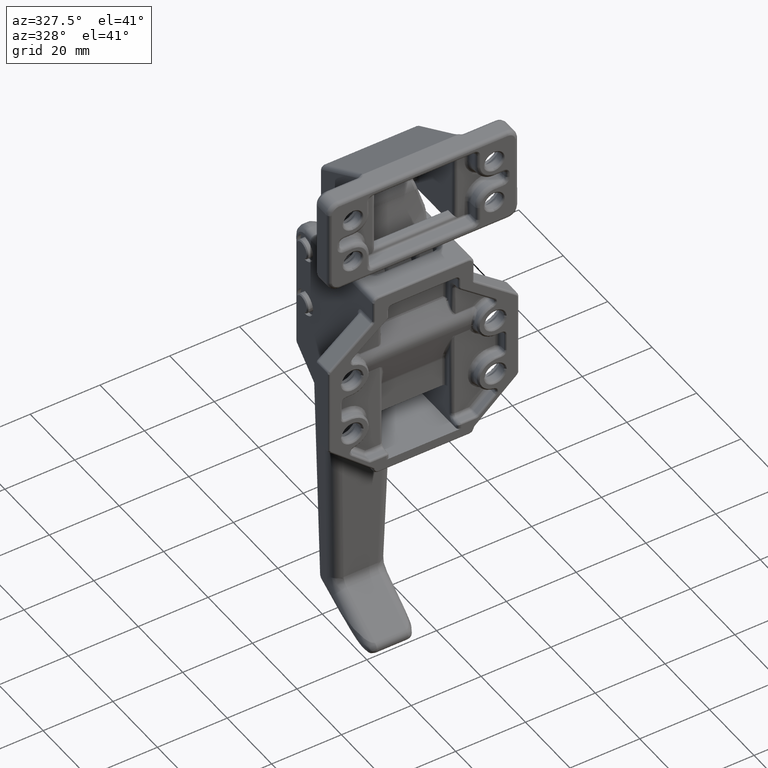
[diagram: clean part render]
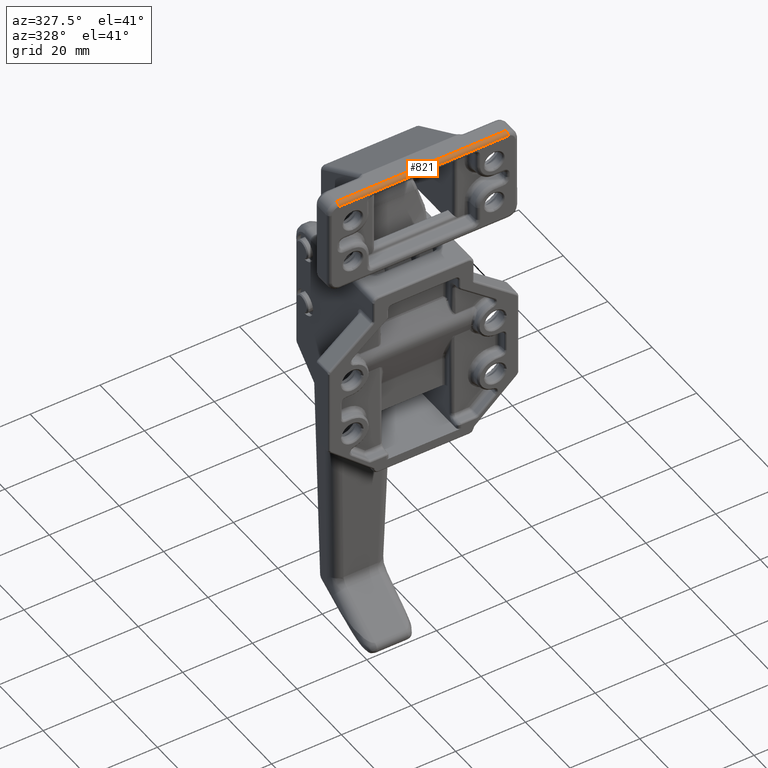
[diagram: same view with one face highlighted and labeled with its STEP entity id]
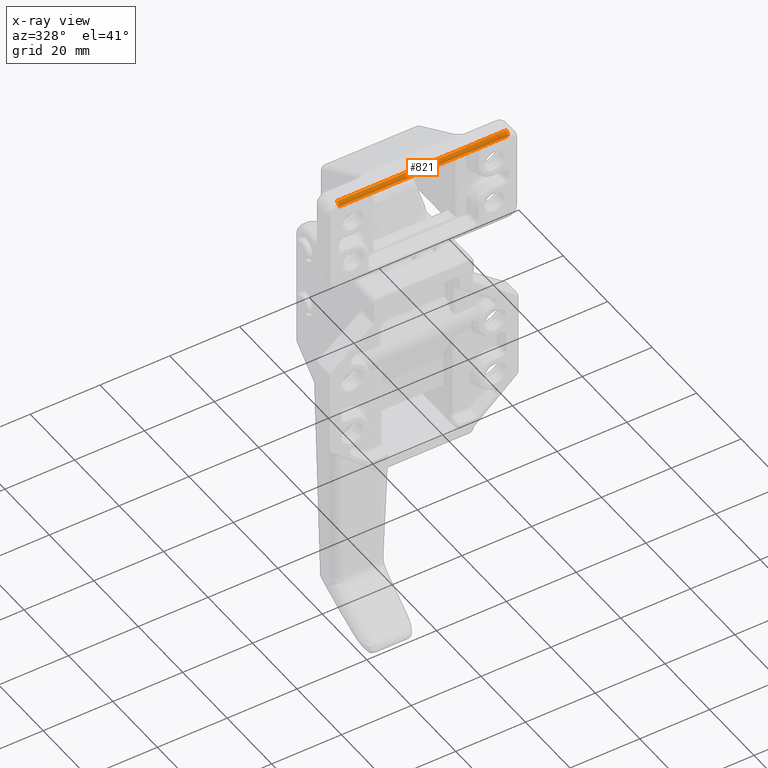
[diagram: x-ray of the same camera — body ghosted, the highlighted face saturated]
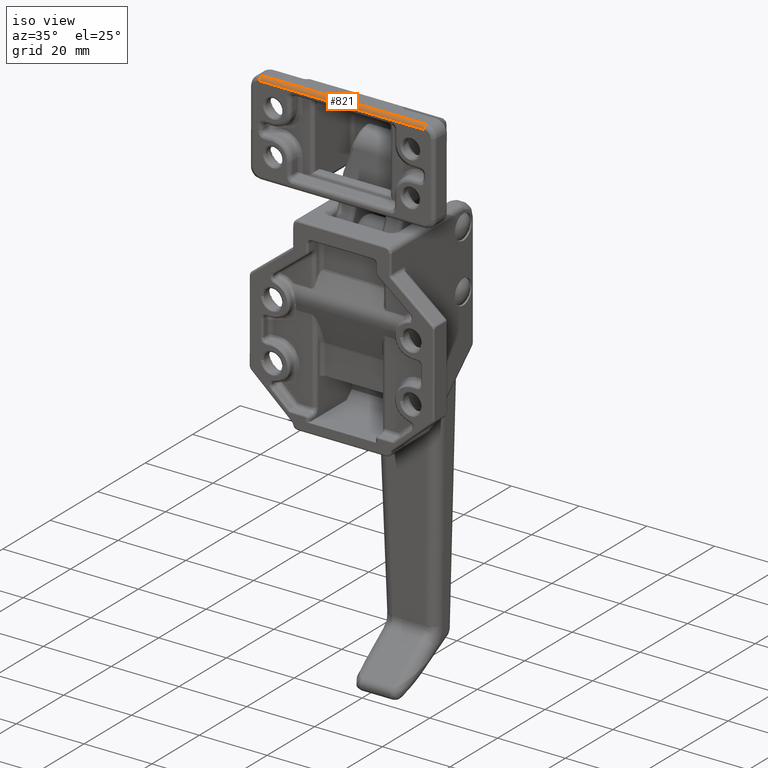
[diagram: same view with one face highlighted and labeled with its STEP entity id]
A machine part, auxiliary view. The second image highlights one B-rep face of the part: STEP entity #821.
The next image is the same camera in x-ray: the body ghosted, the highlighted face saturated — about 0% of this face is hidden behind the body in this view.
A second angle (iso view) of the same face is appended — the face is thin or edge-on in the first view.
In plain terms, the highlighted cylindrical surface (edge-blend (fillet) strip) has radius 1 mm, axis along (-1, -0, 0).
Its self-contained STEP definition (entity closure, byte-faithful):
#821=ADVANCED_FACE('',(#6679),#6678,.T.);
#6678=CYLINDRICAL_SURFACE('',#19342,1.00000000000E+000);
#6679=FACE_OUTER_BOUND('',#19343,.T.);
#19339=CARTESIAN_POINT('',(2.50000000000E-001,-1.12500000000E+001,1.27500000000E+001));
#19340=DIRECTION('',(-1.00000000000E+000,-0.00000000000E+000,-0.00000000000E+000));
#19341=DIRECTION('',(-0.00000000000E+000,-0.00000000000E+000,1.00000000000E+000));
#19342=AXIS2_PLACEMENT_3D('',#19339,#19340,#19341);
#19343=EDGE_LOOP('',(#26492,#26493,#26494,#26495));
#26492=ORIENTED_EDGE('',*,*,#29279,.T.);
#26493=ORIENTED_EDGE('',*,*,#29280,.T.);
#26494=ORIENTED_EDGE('',*,*,#29281,.T.);
#26495=ORIENTED_EDGE('',*,*,#29241,.T.);
#29241=EDGE_CURVE('',#38593,#38586,#38594,.T.);
#29279=EDGE_CURVE('',#38586,#38845,#38846,.T.);
#29280=EDGE_CURVE('',#38845,#38852,#38853,.T.);
#29281=EDGE_CURVE('',#38852,#38593,#38859,.T.);
#38586=VERTEX_POINT('',#50834);
#38593=VERTEX_POINT('',#50838);
#38594=LINE('',#50839,#50840);
#38845=VERTEX_POINT('',#51001);
#38846=CIRCLE('',#51005,1.00000000000E+000);
#38852=VERTEX_POINT('',#51006);
#38853=LINE('',#51007,#51008);
#38859=CIRCLE('',#51013,1.00000000000E+000);
#50834=CARTESIAN_POINT('',(-2.40000000000E+001,-1.12500000000E+001,1.37500000000E+001));
#50838=CARTESIAN_POINT('',(2.45000000000E+001,-1.12500000000E+001,1.37500000000E+001));
#50839=CARTESIAN_POINT('',(2.45000000000E+001,-1.12500000000E+001,1.37500000000E+001));
#50840=VECTOR('',#50841,4.85000000000E+001);
#50841=DIRECTION('',(-1.00000000000E+000,0.00000000000E+000,3.66259142144E-017));
#51001=CARTESIAN_POINT('',(-2.40000000000E+001,-1.22500000000E+001,1.27500000000E+001));
#51002=CARTESIAN_POINT('',(-2.40000000000E+001,-1.12500000000E+001,1.27500000000E+001));
#51003=DIRECTION('',(1.00000000000E+000,0.00000000000E+000,-0.00000000000E+000));
#51004=DIRECTION('',(-0.00000000000E+000,-0.00000000000E+000,-1.00000000000E+000));
#51005=AXIS2_PLACEMENT_3D('',#51002,#51003,#51004);
#51006=CARTESIAN_POINT('',(2.45000000000E+001,-1.22500000000E+001,1.27500000000E+001));
#51007=CARTESIAN_POINT('',(-2.40000000000E+001,-1.22500000000E+001,1.27500000000E+001));
#51008=VECTOR('',#51009,4.85000000000E+001);
#51009=DIRECTION('',(1.00000000000E+000,0.00000000000E+000,3.66259142144E-016));
#51010=CARTESIAN_POINT('',(2.45000000000E+001,-1.12500000000E+001,1.27500000000E+001));
#51011=DIRECTION('',(-1.00000000000E+000,-0.00000000000E+000,0.00000000000E+000));
#51012=DIRECTION('',(-0.00000000000E+000,1.00000000000E+000,1.77635683940E-014));
#51013=AXIS2_PLACEMENT_3D('',#51010,#51011,#51012);